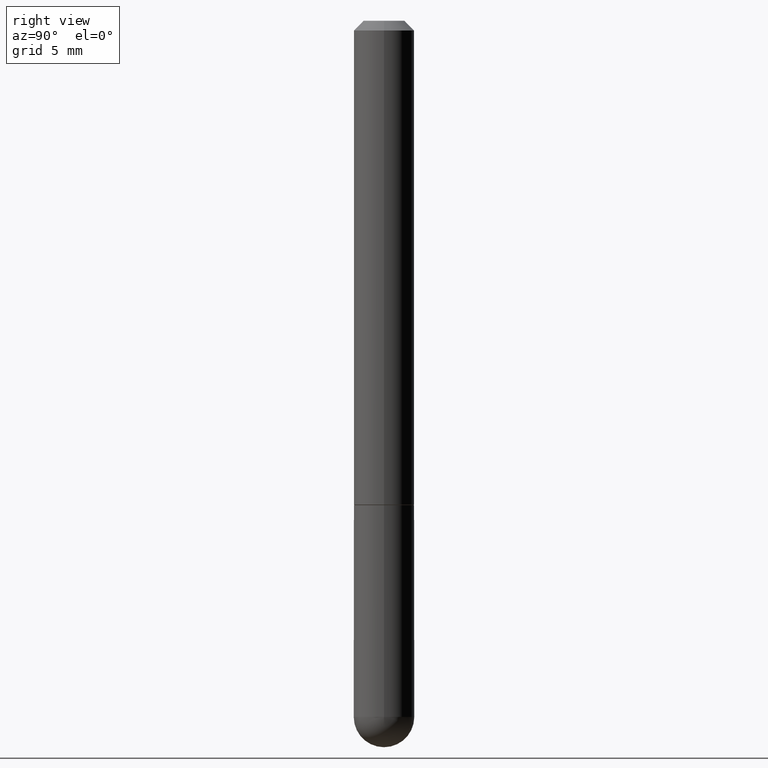
[diagram: clean part render]
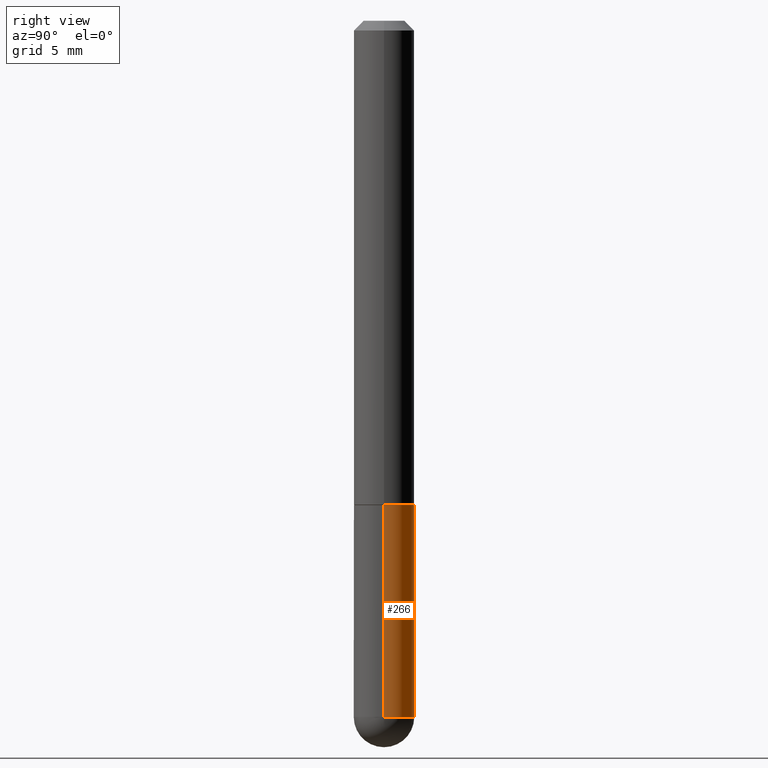
[diagram: same view with one face highlighted and labeled with its STEP entity id]
A machine part, right view. The second image highlights one B-rep face of the part: STEP entity #266.
In plain terms, the highlighted cylindrical surface (edge-blend (fillet) strip) has radius 1.5875 mm, axis along (-0, 0, 1).
Its self-contained STEP definition (entity closure, byte-faithful):
#5 = AXIS2_PLACEMENT_3D ( 'NONE', #233, #230, #107 ) ;
#10 = VERTEX_POINT ( 'NONE', #351 ) ;
#16 = AXIS2_PLACEMENT_3D ( 'NONE', #29, #321, #267 ) ;
#21 = DIRECTION ( 'NONE',  ( -2.445468806185136877E-29, 3.491481338843145188E-15, 1.000000000000000000 ) ) ;
#28 = CARTESIAN_POINT ( 'NONE',  ( -0.06250000000000000000, -3.811153671865022332E-15, -1.000000000000000222 ) ) ;
#29 = CARTESIAN_POINT ( 'NONE',  ( 0.000000000000000000, 0.000000000000000000, 0.000000000000000000 ) ) ;
#31 = CARTESIAN_POINT ( 'NONE',  ( 3.515361408891134418E-29, -5.019004424587023131E-15, -1.437500000000000222 ) ) ;
#33 = AXIS2_PLACEMENT_3D ( 'NONE', #31, #196, #294 ) ;
#39 = VERTEX_POINT ( 'NONE', #28 ) ;
#41 = CIRCLE ( 'NONE', #98, 0.06250000000000000000 ) ;
#42 = ORIENTED_EDGE ( 'NONE', *, *, #237, .T. ) ;
#51 = CARTESIAN_POINT ( 'NONE',  ( 2.445468806185136877E-29, -3.491481338843145977E-15, -1.000000000000000222 ) ) ;
#57 = LINE ( 'NONE', #287, #227 ) ;
#61 = VERTEX_POINT ( 'NONE', #187 ) ;
#66 = FACE_OUTER_BOUND ( 'NONE', #411, .T. ) ;
#77 = EDGE_CURVE ( 'NONE', #10, #39, #57, .T. ) ;
#85 = VECTOR ( 'NONE', #87, 39.37007874015748143 ) ;
#87 = DIRECTION ( 'NONE',  ( -2.445468806185136877E-29, 3.491481338843145188E-15, 1.000000000000000000 ) ) ;
#98 = AXIS2_PLACEMENT_3D ( 'NONE', #51, #191, #338 ) ;
#107 = DIRECTION ( 'NONE',  ( 1.000000000000000000, -6.982962677686268288E-15, 0.000000000000000000 ) ) ;
#108 = ORIENTED_EDGE ( 'NONE', *, *, #77, .T. ) ;
#171 = EDGE_CURVE ( 'NONE', #61, #410, #404, .T. ) ;
#185 = VERTEX_POINT ( 'NONE', #216 ) ;
#187 = CARTESIAN_POINT ( 'NONE',  ( 0.06249999999999995143, -4.691678049070475040E-15, -1.437500000000000222 ) ) ;
#189 = EDGE_CURVE ( 'NONE', #410, #39, #41, .T. ) ;
#191 = DIRECTION ( 'NONE',  ( -2.445468806185136597E-29, 3.491481338843145583E-15, 1.000000000000000000 ) ) ;
#196 = DIRECTION ( 'NONE',  ( -2.445468806185136597E-29, 3.491481338843145583E-15, 1.000000000000000000 ) ) ;
#216 = CARTESIAN_POINT ( 'NONE',  ( 4.364351673554256397E-16, 0.06249999999999480971, -1.437500000000000444 ) ) ;
#227 = VECTOR ( 'NONE', #21, 39.37007874015748143 ) ;
#230 = DIRECTION ( 'NONE',  ( -2.445468806185136597E-29, 3.491481338843145583E-15, 1.000000000000000000 ) ) ;
#233 = CARTESIAN_POINT ( 'NONE',  ( 3.515361408891134418E-29, -5.019004424587023131E-15, -1.437500000000000222 ) ) ;
#237 = EDGE_CURVE ( 'NONE', #61, #185, #263, .T. ) ;
#263 = CIRCLE ( 'NONE', #5, 0.06249999999999995143 ) ;
#266 = ADVANCED_FACE ( 'NONE', ( #66 ), #318, .T. ) ;
#267 = DIRECTION ( 'NONE',  ( 1.000000000000000000, -6.982962677686266711E-15, 4.876176775795935793E-29 ) ) ;
#287 = CARTESIAN_POINT ( 'NONE',  ( -0.06249999999999997224, 4.440892098500624190E-16, -3.074334431409315063E-30 ) ) ;
#294 = DIRECTION ( 'NONE',  ( 1.000000000000000000, -6.982962677686268288E-15, 0.000000000000000000 ) ) ;
#302 = CARTESIAN_POINT ( 'NONE',  ( 0.06250000000000000000, -3.927916506198537646E-15, -1.000000000000000222 ) ) ;
#317 = EDGE_CURVE ( 'NONE', #185, #10, #398, .T. ) ;
#318 = CYLINDRICAL_SURFACE ( 'NONE', #16, 0.06249999999999997224 ) ;
#321 = DIRECTION ( 'NONE',  ( -2.445468806185136597E-29, 3.491481338843145583E-15, 1.000000000000000000 ) ) ;
#338 = DIRECTION ( 'NONE',  ( 1.000000000000000000, -6.982962677686262766E-15, 0.000000000000000000 ) ) ;
#344 = ORIENTED_EDGE ( 'NONE', *, *, #171, .F. ) ;
#351 = CARTESIAN_POINT ( 'NONE',  ( -0.06249999999999995143, -3.811153671865022332E-15, -1.437500000000000222 ) ) ;
#352 = ORIENTED_EDGE ( 'NONE', *, *, #189, .F. ) ;
#372 = CARTESIAN_POINT ( 'NONE',  ( 0.06249999999999997224, -4.364351673553914722E-16, 3.047610484872458469E-30 ) ) ;
#389 = ORIENTED_EDGE ( 'NONE', *, *, #317, .T. ) ;
#398 = CIRCLE ( 'NONE', #33, 0.06249999999999995143 ) ;
#404 = LINE ( 'NONE', #372, #85 ) ;
#410 = VERTEX_POINT ( 'NONE', #302 ) ;
#411 = EDGE_LOOP ( 'NONE', ( #389, #108, #352, #344, #42 ) ) ;